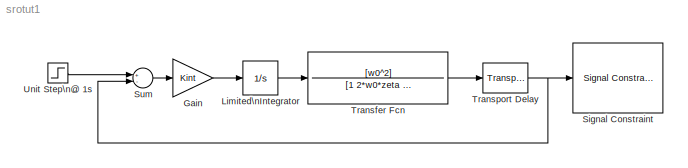
MODEL srotut1
KIND model
CONFIG PreLoadFcn = srotut1_dat
BLOCK [Gain] Gain
  Gain = Kint
BLOCK [Integrator] Limited\nIntegrator
  LimitOutput = on
  LowerSaturationLimit = -1.5
  Ports = [1, 1]
  UpperSaturationLimit = 1.5
BLOCK [Reference] Signal Constraint  REF=srolib/Signal Constraint  (lib defined in mdl_d992e5ea460a)
  DialogPosition = [0.1 0.25 0.45 0.31]
  Ports = [1]
  SaveIn = workspace
  ShowPortLabels = on
  SourceBlock = srolib/Signal Constraint
  SourceType = Signal Constraint
  Tag = sro_block
BLOCK [Sum] Sum
  Inputs = +-
  Ports = [2, 1]
BLOCK [TransferFcn] Transfer Fcn
  Denominator = [1 2*w0*zeta w0^2]
  Numerator = [w0^2]
BLOCK [TransportDelay] Transport Delay
BLOCK [Step] Unit Step\n@ 1s
  SampleTime = 0
LINE Gain:1 -> Limited\nIntegrator:1
LINE Limited\nIntegrator:1 -> Transfer Fcn:1
LINE Sum:1 -> Gain:1
LINE Transfer Fcn:1 -> Transport Delay:1
NET Transport Delay:1 -> Signal Constraint:1, Sum:2
LINE Unit Step\n@ 1s:1 -> Sum:1
note: NET lines group one-source signal fan-out (src -> all destinations, sorted); 1:1 wires keep LINE
